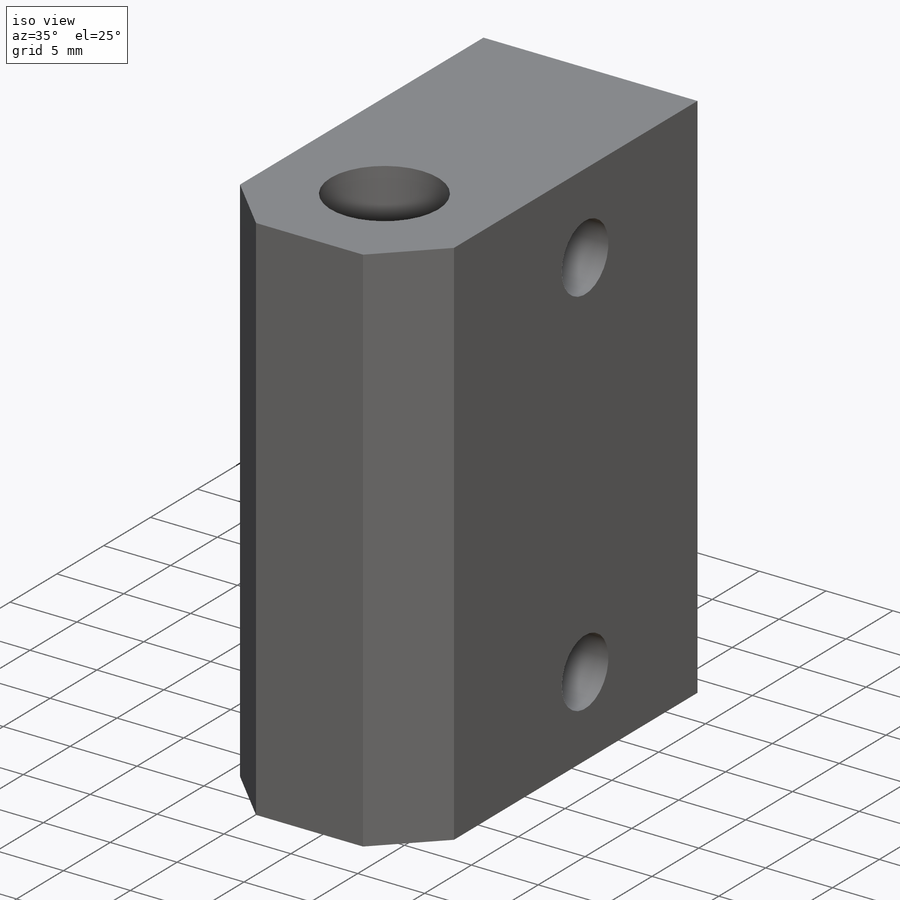
[diagram: iso view]
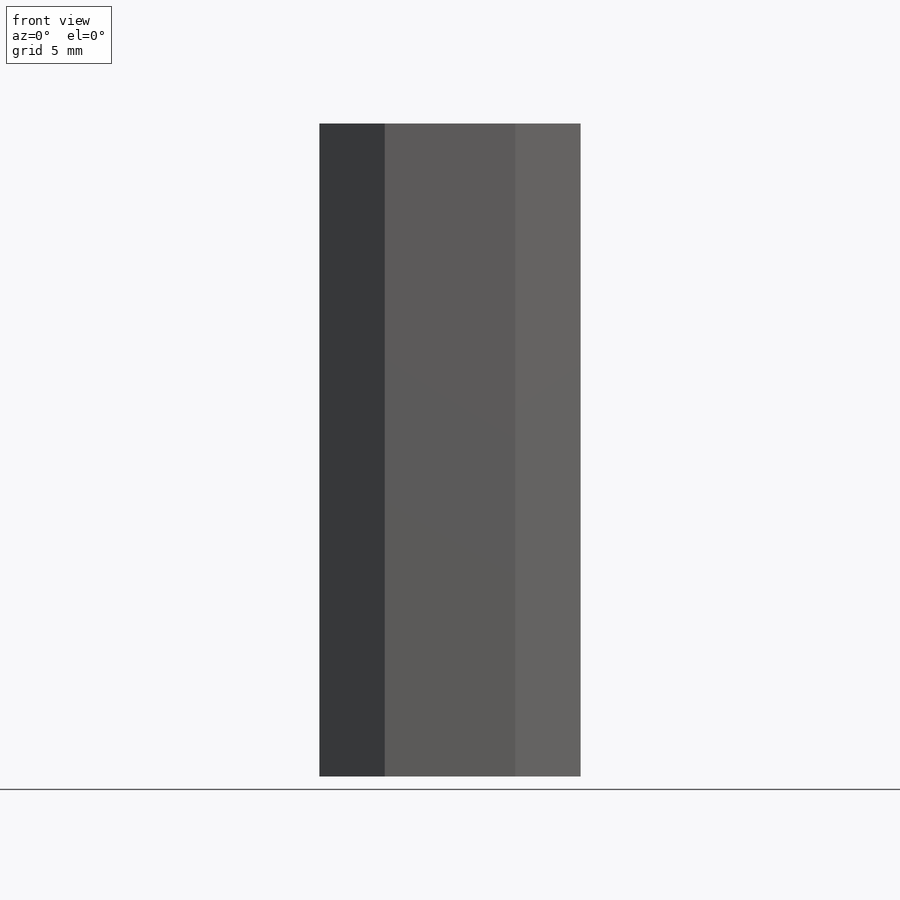
[diagram: front view]
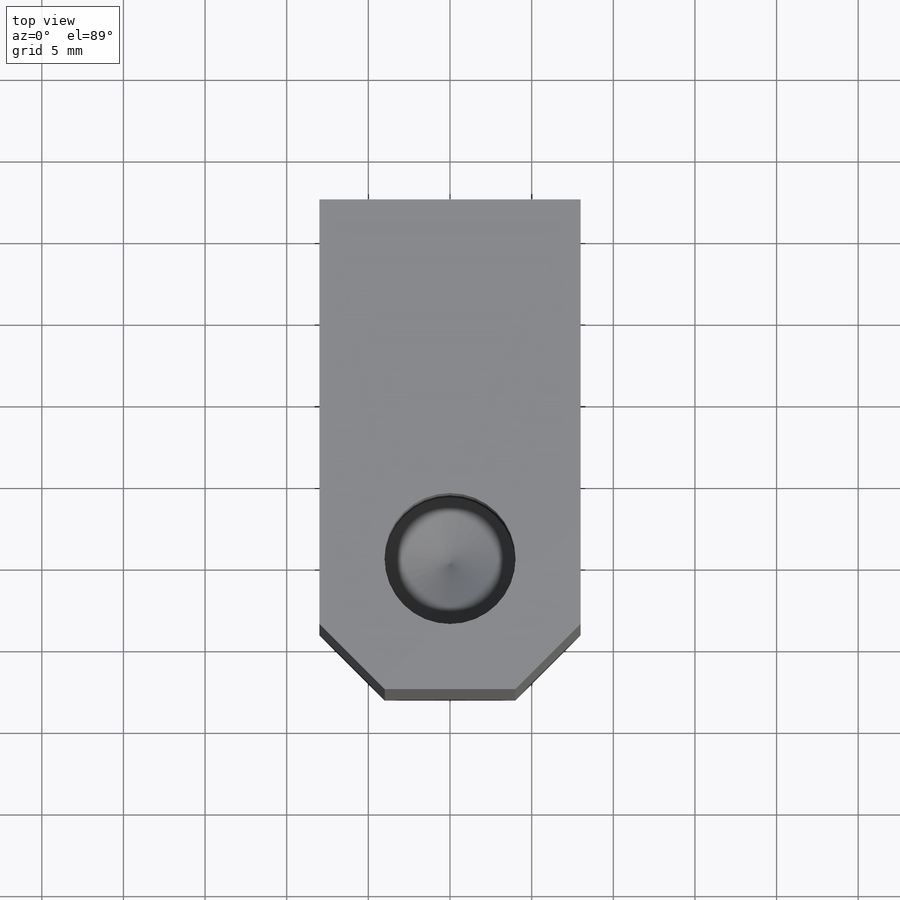
[diagram: top view]
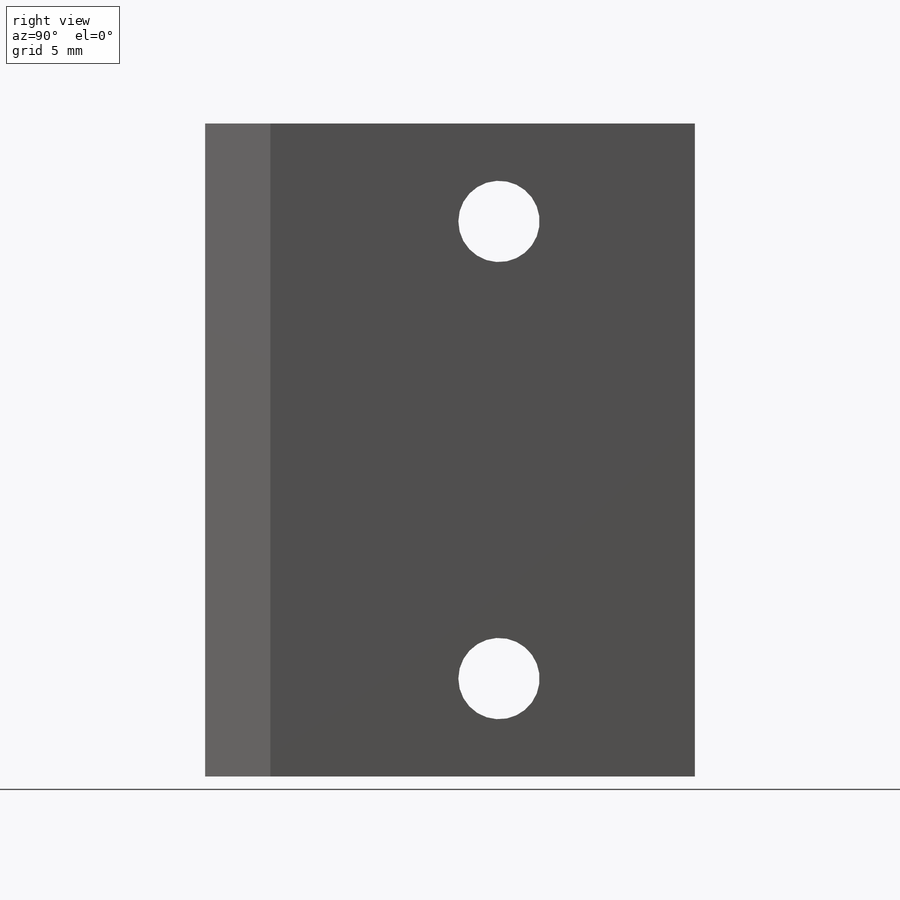
[diagram: right view]
SOLIDWORKS PART (.sldprt)
format: sldprt  version: not decoded by parser v0  size: 216,576 bytes
history: native  units: mm
features: sketch x5, hole x2, material x1, extrude x1, chamfer x1 (+11 scaffold rows collapsed)
feature tree (21):
  scaffold x11  (default folders/planes/origin — collapsed)
  material  "6061-T6 (SS)"
  sketch  "Sketch1"  dims[D1=7.9502mm D2=16.0mm D3=8.0mm D4=7.9248mm D5=30.0mm]
  extrude  "Boss-Extrude1"  Depth=40mm
  hole  "O (0.316) Diameter Hole1"  Diameter=8.0264mm Depth=15mm
  sketch  "Sketch3"
  sketch  "Sketch2"  dims[hole-wizard template sketch: 46 standard entries collapsed; hole parameters kept: c15.Hole Dia.=8.0264mm c15.Hole Depth=15.0mm c15.D3=~14.816244mm c15.Drill Angle=118.0deg]
  hole  "#10 Clearance Hole1"  Diameter=4.9784mm Depth=16mm
  sketch  "Sketch5"  dims[D1=28.0mm D2=10.0mm]
  sketch  "Sketch4"  dims[hole-wizard template sketch: 60 standard entries collapsed; hole parameters kept: c18.Thru Hole Depth=16.0mm]
  chamfer  "Chamfer1"  Distance=4mm Angle=45deg
decode coverage: 8 of 9 modeling features carry decoded parameters
note: ~ marks probable driven/reference dimensions
note: suppression state not decoded; provenance and decode notes live in map.json
